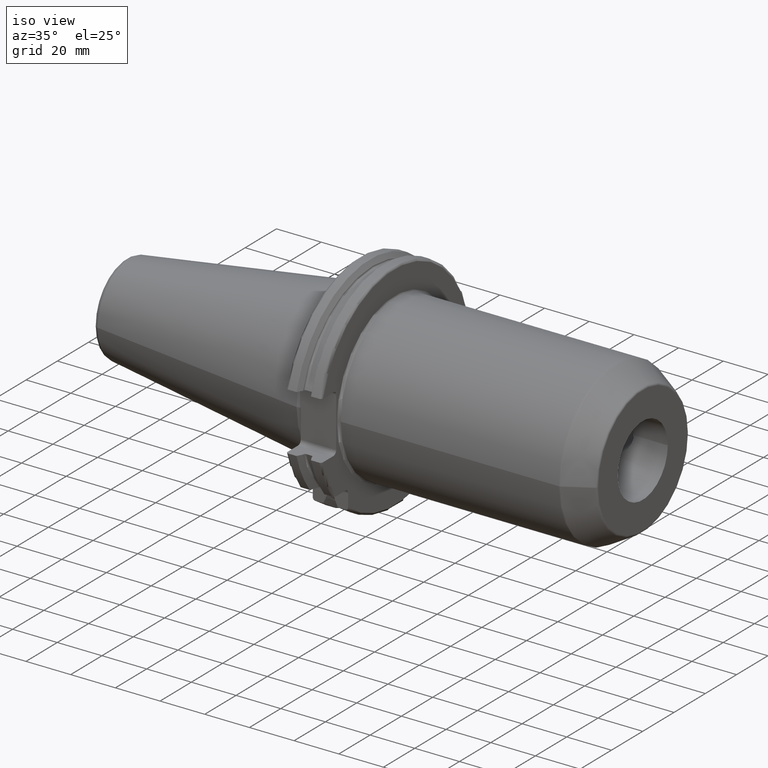
[diagram: clean part render]
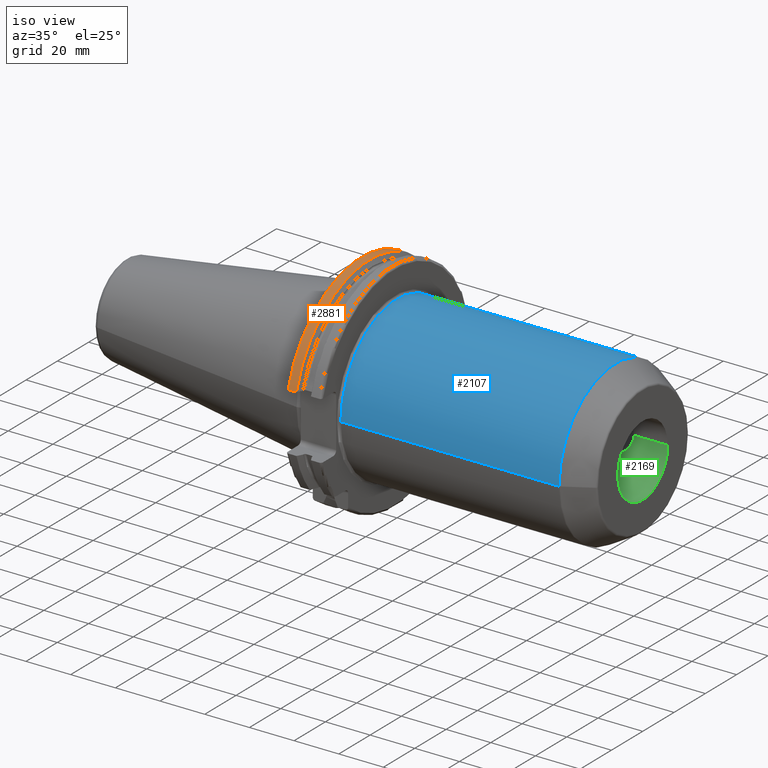
[diagram: same view with three faces highlighted in distinct colors, each labeled with its STEP entity id]
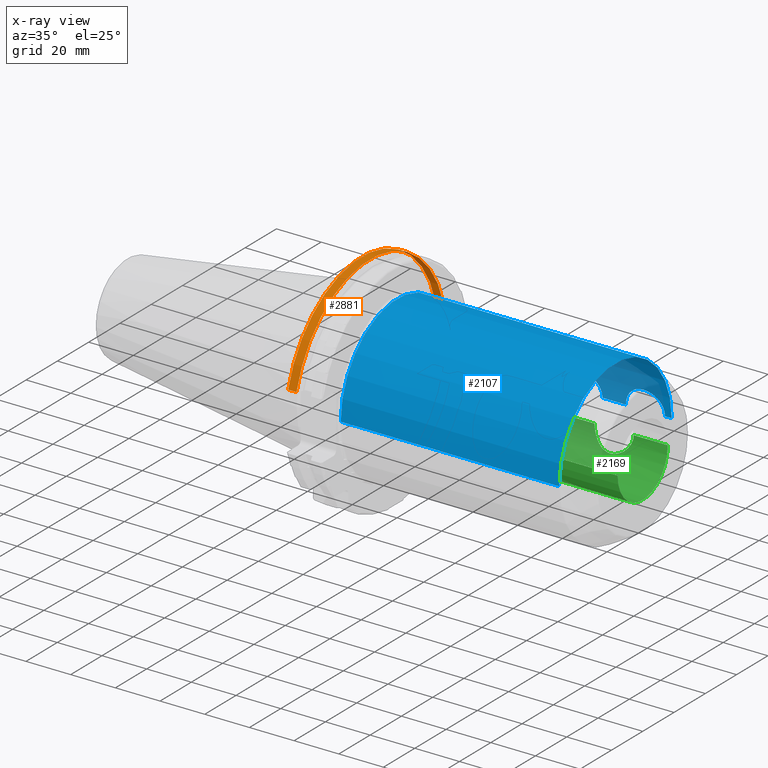
[diagram: x-ray of the same camera — body ghosted, the three highlighted faces saturated]
A machine part, iso view with three faces highlighted in distinct colors.
The next image is the same camera in x-ray (body ghosted, the three faces saturated) — at least one of them is partly hidden behind the body in this view.
Their STEP definitions:

[orange] entity #2881 — the highlighted cylindrical surface (partial cylindrical patch) has radius 48.7375 mm, axis along (1, 0, 0).
#989=DIRECTION('',(1.E0,0.E0,0.E0));
#990=VECTOR('',#989,3.734621614173E0);
#991=CARTESIAN_POINT('',(4.2E0,4.699929686974E1,1.29E1));
#992=LINE('',#991,#990);
#993=CARTESIAN_POINT('',(7.934621614173E0,0.E0,0.E0));
#994=DIRECTION('',(1.E0,0.E0,0.E0));
#995=DIRECTION('',(0.E0,9.643354064066E-1,2.646832521159E-1));
#996=AXIS2_PLACEMENT_3D('',#993,#994,#995);
#998=DIRECTION('',(1.E0,0.E0,0.E0));
#999=VECTOR('',#998,3.734621614173E0);
#1000=CARTESIAN_POINT('',(4.2E0,-4.699929686974E1,1.29E1));
#1001=LINE('',#1000,#999);
#1020=CARTESIAN_POINT('',(7.934621614173E0,4.699929686974E1,1.29E1));
#1032=CARTESIAN_POINT('',(7.934621614173E0,-4.699929686974E1,1.29E1));
#1045=CARTESIAN_POINT('',(4.2E0,0.E0,0.E0));
#1046=DIRECTION('',(1.E0,0.E0,0.E0));
#1047=DIRECTION('',(0.E0,9.643354064066E-1,2.646832521159E-1));
#1048=AXIS2_PLACEMENT_3D('',#1045,#1046,#1047);
#1690=VERTEX_POINT('',#1020);
#1691=VERTEX_POINT('',#1032);
#1702=CARTESIAN_POINT('',(4.2E0,4.699929686974E1,1.29E1));
#1703=VERTEX_POINT('',#1702);
#1706=CARTESIAN_POINT('',(4.2E0,-4.699929686974E1,1.29E1));
#1707=VERTEX_POINT('',#1706);
#2868=CARTESIAN_POINT('',(-1.076325E2,0.E0,0.E0));
#2869=DIRECTION('',(1.E0,0.E0,0.E0));
#2870=DIRECTION('',(0.E0,-1.E0,0.E0));
#2871=AXIS2_PLACEMENT_3D('',#2868,#2869,#2870);
#2872=CYLINDRICAL_SURFACE('',#2871,4.87375E1);
#2873=ORIENTED_EDGE('',*,*,#2835,.T.);
#2875=ORIENTED_EDGE('',*,*,#2874,.T.);
#2876=ORIENTED_EDGE('',*,*,#2463,.F.);
#2878=ORIENTED_EDGE('',*,*,#2877,.F.);
#2879=EDGE_LOOP('',(#2873,#2875,#2876,#2878));
#2880=FACE_OUTER_BOUND('',#2879,.F.);
#2881=ADVANCED_FACE('',(#2880),#2872,.T.);
#997=CIRCLE('',#996,4.87375E1);
#1049=CIRCLE('',#1048,4.87375E1);
#2463=EDGE_CURVE('',#1707,#1691,#1001,.T.);
#2835=EDGE_CURVE('',#1703,#1690,#992,.T.);
#2874=EDGE_CURVE('',#1690,#1691,#997,.T.);
#2877=EDGE_CURVE('',#1703,#1707,#1049,.T.);

[blue] entity #2107 — the highlighted cylindrical surface (partial cylindrical patch) has radius 36 mm, axis along (1, 0, 0).
#199=DIRECTION('',(-1.E0,0.E0,-1.085437181624E-13));
#200=VECTOR('',#199,9.768205080757E1);
#201=CARTESIAN_POINT('',(1.177320508076E2,-3.6E1,3.166704809412E-12));
#202=LINE('',#201,#200);
#208=DIRECTION('',(-1.E0,0.E0,1.063032301368E-12));
#209=VECTOR('',#208,2.982050807569E0);
#210=CARTESIAN_POINT('',(1.177320508076E2,3.6E1,-3.167808499080E-12));
#211=LINE('',#210,#209);
#237=DIRECTION('',(-1.E0,0.E0,0.E0));
#238=VECTOR('',#237,1.05E1);
#239=CARTESIAN_POINT('',(9.725E1,3.6E1,0.E0));
#240=LINE('',#239,#238);
#266=DIRECTION('',(-1.E0,0.E0,0.E0));
#267=VECTOR('',#266,3.73E1);
#268=CARTESIAN_POINT('',(6.925E1,3.6E1,0.E0));
#269=LINE('',#268,#267);
#275=DIRECTION('',(1.E0,0.E0,0.E0));
#276=VECTOR('',#275,1.19E1);
#277=CARTESIAN_POINT('',(2.005E1,3.53E1,7.064700984472E0));
#278=LINE('',#277,#276);
#279=CARTESIAN_POINT('',(3.195E1,0.E0,0.E0));
#280=DIRECTION('',(1.E0,0.E0,0.E0));
#281=DIRECTION('',(0.E0,1.E0,0.E0));
#282=AXIS2_PLACEMENT_3D('',#279,#280,#281);
#284=CARTESIAN_POINT('',(8.675E1,3.6E1,0.E0));
#285=CARTESIAN_POINT('',(8.675E1,3.6E1,4.328762405390E-1));
#286=CARTESIAN_POINT('',(8.668668040112E1,3.598452680037E1,1.290902916038E0));
#287=CARTESIAN_POINT('',(8.639844414085E1,3.591555898103E1,2.569113107540E0));
#288=CARTESIAN_POINT('',(8.592341840487E1,3.580666403429E1,3.789105766172E0));
#289=CARTESIAN_POINT('',(8.526538734877E1,3.566579983971E1,4.935370911112E0));
#290=CARTESIAN_POINT('',(8.444270121439E1,3.550609889240E1,5.970047260119E0));
#291=CARTESIAN_POINT('',(8.346571557522E1,3.534066362951E1,6.875518726139E0));
#292=CARTESIAN_POINT('',(8.237517909092E1,3.518732628851E1,7.615820868636E0));
#293=CARTESIAN_POINT('',(8.118257675617E1,3.505813245286E1,8.185689496257E0));
#294=CARTESIAN_POINT('',(7.993841407744E1,3.496650309323E1,8.565646898380E0));
#295=CARTESIAN_POINT('',(7.864598245611E1,3.491840976312E1,8.758190115069E0));
#296=CARTESIAN_POINT('',(7.735464354204E1,3.491839629078E1,8.758244256587E0));
#297=CARTESIAN_POINT('',(7.606209834415E1,3.496647615459E1,8.565754065491E0));
#298=CARTESIAN_POINT('',(7.481812166919E1,3.505806747354E1,8.185969747810E0));
#299=CARTESIAN_POINT('',(7.362520025622E1,3.518727957249E1,7.616027115692E0));
#300=CARTESIAN_POINT('',(7.253498314087E1,3.534055455140E1,6.876087451742E0));
#301=CARTESIAN_POINT('',(7.155749004122E1,3.550606328243E1,5.970242728445E0));
#302=CARTESIAN_POINT('',(7.073520868062E1,3.566567909736E1,4.936242167320E0));
#303=CARTESIAN_POINT('',(7.007668989580E1,3.580663796255E1,3.789375502926E0));
#304=CARTESIAN_POINT('',(6.960172760851E1,3.591551923999E1,2.569672583821E0));
#305=CARTESIAN_POINT('',(6.931329697060E1,3.598453179394E1,1.290921085979E0));
#306=CARTESIAN_POINT('',(6.925E1,3.6E1,4.328749656371E-1));
#307=CARTESIAN_POINT('',(6.925E1,3.6E1,0.E0));
#309=CARTESIAN_POINT('',(1.1475E2,3.6E1,0.E0));
#310=CARTESIAN_POINT('',(1.1475E2,3.6E1,4.328762405390E-1));
#311=CARTESIAN_POINT('',(1.146866804011E2,3.598452680037E1,1.290902916038E0));
#312=CARTESIAN_POINT('',(1.143984441408E2,3.591555898103E1,2.569113107540E0));
#313=CARTESIAN_POINT('',(1.139234184049E2,3.580666403429E1,3.789105766172E0));
#314=CARTESIAN_POINT('',(1.132653873488E2,3.566579983971E1,4.935370911112E0));
#315=CARTESIAN_POINT('',(1.124427012144E2,3.550609889240E1,5.970047260119E0));
#316=CARTESIAN_POINT('',(1.114657155752E2,3.534066362951E1,6.875518726139E0));
#317=CARTESIAN_POINT('',(1.103751790909E2,3.518732628851E1,7.615820868636E0));
#318=CARTESIAN_POINT('',(1.091825767562E2,3.505813245286E1,8.185689496257E0));
#319=CARTESIAN_POINT('',(1.079384140774E2,3.496650309323E1,8.565646898380E0));
#320=CARTESIAN_POINT('',(1.066459824561E2,3.491840976312E1,8.758190115069E0));
#321=CARTESIAN_POINT('',(1.053546435420E2,3.491839629078E1,8.758244256587E0));
#322=CARTESIAN_POINT('',(1.040620983442E2,3.496647615459E1,8.565754065491E0));
#323=CARTESIAN_POINT('',(1.028181216692E2,3.505806747354E1,8.185969747809E0));
#324=CARTESIAN_POINT('',(1.016252002562E2,3.518727957249E1,7.616027115692E0));
#325=CARTESIAN_POINT('',(1.005349831409E2,3.534055455140E1,6.876087451742E0));
#326=CARTESIAN_POINT('',(9.955749004122E1,3.550606328243E1,5.970242728445E0));
#327=CARTESIAN_POINT('',(9.873520868062E1,3.566567909736E1,4.936242167320E0));
#328=CARTESIAN_POINT('',(9.807668989580E1,3.580663796255E1,3.789375502926E0));
#329=CARTESIAN_POINT('',(9.760172760851E1,3.591551923999E1,2.569672583821E0));
#330=CARTESIAN_POINT('',(9.731329697060E1,3.598453179394E1,1.290921085979E0));
#331=CARTESIAN_POINT('',(9.725E1,3.6E1,4.328749656371E-1));
#332=CARTESIAN_POINT('',(9.725E1,3.6E1,0.E0));
#334=CARTESIAN_POINT('',(1.177320508076E2,0.E0,0.E0));
#335=DIRECTION('',(-1.E0,0.E0,0.E0));
#336=DIRECTION('',(0.E0,-1.E0,0.E0));
#337=AXIS2_PLACEMENT_3D('',#334,#335,#336);
#339=CARTESIAN_POINT('',(2.005E1,0.E0,0.E0));
#340=DIRECTION('',(1.E0,0.E0,0.E0));
#341=DIRECTION('',(0.E0,9.805555555556E-1,1.962416940131E-1));
#342=AXIS2_PLACEMENT_3D('',#339,#340,#341);
#1800=CARTESIAN_POINT('',(1.1475E2,3.6E1,0.E0));
#1802=VERTEX_POINT('',#1800);
#1804=CARTESIAN_POINT('',(9.725E1,3.6E1,0.E0));
#1806=VERTEX_POINT('',#1804);
#1809=CARTESIAN_POINT('',(1.177320508076E2,3.6E1,0.E0));
#1810=CARTESIAN_POINT('',(1.177320508076E2,-3.6E1,0.E0));
#1811=VERTEX_POINT('',#1809);
#1812=VERTEX_POINT('',#1810);
#1825=CARTESIAN_POINT('',(2.005E1,-3.6E1,-7.436068182970E-12));
#1826=VERTEX_POINT('',#1825);
#1827=VERTEX_POINT('',#284);
#1828=VERTEX_POINT('',#307);
#1854=CARTESIAN_POINT('',(2.005E1,3.53E1,7.064700984472E0));
#1855=CARTESIAN_POINT('',(3.195E1,3.53E1,7.064700984472E0));
#1856=VERTEX_POINT('',#1854);
#1857=VERTEX_POINT('',#1855);
#1858=CARTESIAN_POINT('',(3.195E1,3.6E1,1.421085471520E-14));
#1859=VERTEX_POINT('',#1858);
#2086=CARTESIAN_POINT('',(1.35025E1,0.E0,0.E0));
#2087=DIRECTION('',(1.E0,0.E0,0.E0));
#2088=DIRECTION('',(0.E0,-1.E0,0.E0));
#2089=AXIS2_PLACEMENT_3D('',#2086,#2087,#2088);
#2090=CYLINDRICAL_SURFACE('',#2089,3.6E1);
#2091=ORIENTED_EDGE('',*,*,#2022,.T.);
#2093=ORIENTED_EDGE('',*,*,#2092,.F.);
#2094=ORIENTED_EDGE('',*,*,#2079,.F.);
#2096=ORIENTED_EDGE('',*,*,#2095,.F.);
#2097=ORIENTED_EDGE('',*,*,#2075,.F.);
#2099=ORIENTED_EDGE('',*,*,#2098,.F.);
#2100=ORIENTED_EDGE('',*,*,#2071,.F.);
#2102=ORIENTED_EDGE('',*,*,#2101,.F.);
#2103=ORIENTED_EDGE('',*,*,#2067,.T.);
#2104=ORIENTED_EDGE('',*,*,#2055,.F.);
#2105=EDGE_LOOP('',(#2091,#2093,#2094,#2096,#2097,#2099,#2100,#2102,#2103,
#2104));
#2106=FACE_OUTER_BOUND('',#2105,.F.);
#2107=ADVANCED_FACE('',(#2106),#2090,.T.);
#283=CIRCLE('',#282,3.6E1);
#308=B_SPLINE_CURVE_WITH_KNOTS('',3,(#284,#285,#286,#287,#288,#289,#290,#291,
#292,#293,#294,#295,#296,#297,#298,#299,#300,#301,#302,#303,#304,#305,#306,
#307),.UNSPECIFIED.,.F.,.F.,(4,1,1,1,1,1,1,1,1,1,1,1,1,1,1,1,1,1,1,1,1,4),(0.E0,
4.761904761905E-2,9.523809523810E-2,1.428571428571E-1,1.904761904762E-1,
2.380952380952E-1,2.857142857143E-1,3.333333333333E-1,3.809523809524E-1,
4.285714285714E-1,4.761904761905E-1,5.238095238095E-1,5.714285714286E-1,
6.190476190476E-1,6.666666666667E-1,7.142857142857E-1,7.619047619048E-1,
8.095238095238E-1,8.571428571429E-1,9.047619047619E-1,9.523809523810E-1,1.E0),
.UNSPECIFIED.);
#333=B_SPLINE_CURVE_WITH_KNOTS('',3,(#309,#310,#311,#312,#313,#314,#315,#316,
#317,#318,#319,#320,#321,#322,#323,#324,#325,#326,#327,#328,#329,#330,#331,
#332),.UNSPECIFIED.,.F.,.F.,(4,1,1,1,1,1,1,1,1,1,1,1,1,1,1,1,1,1,1,1,1,4),(0.E0,
4.761904761905E-2,9.523809523810E-2,1.428571428571E-1,1.904761904762E-1,
2.380952380952E-1,2.857142857143E-1,3.333333333333E-1,3.809523809524E-1,
4.285714285714E-1,4.761904761905E-1,5.238095238095E-1,5.714285714286E-1,
6.190476190476E-1,6.666666666667E-1,7.142857142857E-1,7.619047619048E-1,
8.095238095238E-1,8.571428571429E-1,9.047619047619E-1,9.523809523810E-1,1.E0),
.UNSPECIFIED.);
#338=CIRCLE('',#337,3.6E1);
#343=CIRCLE('',#342,3.6E1);
#2022=EDGE_CURVE('',#1856,#1857,#278,.T.);
#2055=EDGE_CURVE('',#1856,#1826,#343,.T.);
#2067=EDGE_CURVE('',#1812,#1826,#202,.T.);
#2071=EDGE_CURVE('',#1811,#1802,#211,.T.);
#2075=EDGE_CURVE('',#1806,#1827,#240,.T.);
#2079=EDGE_CURVE('',#1828,#1859,#269,.T.);
#2092=EDGE_CURVE('',#1859,#1857,#283,.T.);
#2095=EDGE_CURVE('',#1827,#1828,#308,.T.);
#2098=EDGE_CURVE('',#1802,#1806,#333,.T.);
#2101=EDGE_CURVE('',#1812,#1811,#338,.T.);

[green] entity #2169 — the highlighted cylindrical surface (partial cylindrical patch) has radius 16 mm, axis along (1, 0, 0).
#352=CARTESIAN_POINT('',(8.675E1,1.6E1,0.E0));
#353=CARTESIAN_POINT('',(8.675E1,1.6E1,-3.937363825976E-1));
#354=CARTESIAN_POINT('',(8.669775440100E1,1.597132047919E1,-1.186658474498E0));
#355=CARTESIAN_POINT('',(8.644373091325E1,1.583376192086E1,-2.405864529079E0));
#356=CARTESIAN_POINT('',(8.601480027068E1,1.560799043282E1,-3.586568180866E0));
#357=CARTESIAN_POINT('',(8.540579798404E1,1.530241413150E1,-4.718856942047E0));
#358=CARTESIAN_POINT('',(8.463672645007E1,1.494291489727E1,-5.751463389566E0));
#359=CARTESIAN_POINT('',(8.370387754446E1,1.454955286686E1,-6.678858461535E0));
#360=CARTESIAN_POINT('',(8.264703842656E1,1.416586395815E1,-7.451637817074E0));
#361=CARTESIAN_POINT('',(8.151439902187E1,1.383372883056E1,-8.046067176928E0));
#362=CARTESIAN_POINT('',(8.034647911118E1,1.358290976180E1,-8.458798122793E0));
#363=CARTESIAN_POINT('',(7.916870027715E1,1.342928393226E1,-8.698506998055E0));
#364=CARTESIAN_POINT('',(7.799760075245E1,1.337841935638E1,-8.775870869415E0));
#365=CARTESIAN_POINT('',(7.682791170553E1,1.342960963888E1,-8.698007918469E0));
#366=CARTESIAN_POINT('',(7.564985296090E1,1.358352548623E1,-8.457819313595E0));
#367=CARTESIAN_POINT('',(7.448156078770E1,1.383475372427E1,-8.044329087623E0));
#368=CARTESIAN_POINT('',(7.334906812143E1,1.416716236379E1,-7.449178799143E0));
#369=CARTESIAN_POINT('',(7.229349275729E1,1.455060962943E1,-6.676535446851E0));
#370=CARTESIAN_POINT('',(7.136151160983E1,1.494370782237E1,-5.749392458163E0));
#371=CARTESIAN_POINT('',(7.059312836856E1,1.530294332678E1,-4.717067098087E0));
#372=CARTESIAN_POINT('',(6.998491119259E1,1.560814240658E1,-3.585838853054E0));
#373=CARTESIAN_POINT('',(6.955610632799E1,1.583384886335E1,-2.405236791548E0));
#374=CARTESIAN_POINT('',(6.930227912537E1,1.597130268827E1,-1.186720978647E0));
#375=CARTESIAN_POINT('',(6.925E1,1.6E1,-3.937887720285E-1));
#376=CARTESIAN_POINT('',(6.925E1,1.6E1,0.E0));
#378=DIRECTION('',(-1.E0,0.E0,0.E0));
#379=VECTOR('',#378,1.05E1);
#380=CARTESIAN_POINT('',(9.725E1,1.6E1,0.E0));
#381=LINE('',#380,#379);
#382=CARTESIAN_POINT('',(1.1475E2,1.6E1,0.E0));
#383=CARTESIAN_POINT('',(1.1475E2,1.6E1,-3.937363825975E-1));
#384=CARTESIAN_POINT('',(1.146977544010E2,1.597132047919E1,-1.186658474498E0));
#385=CARTESIAN_POINT('',(1.144437309133E2,1.583376192086E1,-2.405864529079E0));
#386=CARTESIAN_POINT('',(1.140148002707E2,1.560799043282E1,-3.586568180866E0));
#387=CARTESIAN_POINT('',(1.134057979840E2,1.530241413150E1,-4.718856942047E0));
#388=CARTESIAN_POINT('',(1.126367264501E2,1.494291489727E1,-5.751463389566E0));
#389=CARTESIAN_POINT('',(1.117038775445E2,1.454955286686E1,-6.678858461535E0));
#390=CARTESIAN_POINT('',(1.106470384266E2,1.416586395815E1,-7.451637817074E0));
#391=CARTESIAN_POINT('',(1.095143990219E2,1.383372883056E1,-8.046067176928E0));
#392=CARTESIAN_POINT('',(1.083464791112E2,1.358290976180E1,-8.458798122793E0));
#393=CARTESIAN_POINT('',(1.071687002772E2,1.342928393226E1,-8.698506998055E0));
#394=CARTESIAN_POINT('',(1.059976007524E2,1.337841935638E1,-8.775870869415E0));
#395=CARTESIAN_POINT('',(1.048279117055E2,1.342960963888E1,-8.698007918469E0));
#396=CARTESIAN_POINT('',(1.036498529609E2,1.358352548623E1,-8.457819313595E0));
#397=CARTESIAN_POINT('',(1.024815607877E2,1.383475372427E1,-8.044329087623E0));
#398=CARTESIAN_POINT('',(1.013490681214E2,1.416716236379E1,-7.449178799143E0));
#399=CARTESIAN_POINT('',(1.002934927573E2,1.455060962943E1,-6.676535446851E0));
#400=CARTESIAN_POINT('',(9.936151160983E1,1.494370782237E1,-5.749392458163E0));
#401=CARTESIAN_POINT('',(9.859312836856E1,1.530294332678E1,-4.717067098087E0));
#402=CARTESIAN_POINT('',(9.798491119259E1,1.560814240658E1,-3.585838853054E0));
#403=CARTESIAN_POINT('',(9.755610632799E1,1.583384886335E1,-2.405236791548E0));
#404=CARTESIAN_POINT('',(9.730227912537E1,1.597130268827E1,-1.186720978647E0));
#405=CARTESIAN_POINT('',(9.725E1,1.6E1,-3.937887720285E-1));
#406=CARTESIAN_POINT('',(9.725E1,1.6E1,0.E0));
#408=DIRECTION('',(-1.E0,0.E0,0.E0));
#409=VECTOR('',#408,1.525E1);
#410=CARTESIAN_POINT('',(1.3E2,1.6E1,0.E0));
#411=LINE('',#410,#409);
#412=DIRECTION('',(-1.E0,0.E0,0.E0));
#413=VECTOR('',#412,6.51E1);
#414=CARTESIAN_POINT('',(1.3E2,-1.6E1,0.E0));
#415=LINE('',#414,#413);
#416=DIRECTION('',(-1.E0,0.E0,0.E0));
#417=VECTOR('',#416,4.35E0);
#418=CARTESIAN_POINT('',(6.925E1,1.6E1,0.E0));
#419=LINE('',#418,#417);
#420=CARTESIAN_POINT('',(6.925E1,1.6E1,0.E0));
#444=CARTESIAN_POINT('',(8.675E1,1.6E1,0.E0));
#472=CARTESIAN_POINT('',(6.49E1,0.E0,0.E0));
#473=DIRECTION('',(-1.E0,0.E0,0.E0));
#474=DIRECTION('',(0.E0,1.E0,0.E0));
#475=AXIS2_PLACEMENT_3D('',#472,#473,#474);
#487=CARTESIAN_POINT('',(1.3E2,0.E0,0.E0));
#488=DIRECTION('',(1.E0,0.E0,0.E0));
#489=DIRECTION('',(0.E0,-1.E0,0.E0));
#490=AXIS2_PLACEMENT_3D('',#487,#488,#489);
#1793=CARTESIAN_POINT('',(6.49E1,1.6E1,0.E0));
#1794=CARTESIAN_POINT('',(6.49E1,-1.6E1,0.E0));
#1795=VERTEX_POINT('',#1793);
#1796=VERTEX_POINT('',#1794);
#1797=CARTESIAN_POINT('',(1.3E2,-1.6E1,0.E0));
#1798=VERTEX_POINT('',#1797);
#1799=CARTESIAN_POINT('',(1.1475E2,1.6E1,0.E0));
#1801=VERTEX_POINT('',#1799);
#1803=CARTESIAN_POINT('',(9.725E1,1.6E1,0.E0));
#1805=VERTEX_POINT('',#1803);
#1807=CARTESIAN_POINT('',(1.3E2,1.6E1,0.E0));
#1808=VERTEX_POINT('',#1807);
#1829=VERTEX_POINT('',#420);
#1830=VERTEX_POINT('',#444);
#2147=CARTESIAN_POINT('',(6.1645E1,0.E0,0.E0));
#2148=DIRECTION('',(1.E0,0.E0,0.E0));
#2149=DIRECTION('',(0.E0,-1.E0,0.E0));
#2150=AXIS2_PLACEMENT_3D('',#2147,#2148,#2149);
#2151=CYLINDRICAL_SURFACE('',#2150,1.6E1);
#2152=ORIENTED_EDGE('',*,*,#2141,.F.);
#2154=ORIENTED_EDGE('',*,*,#2153,.F.);
#2156=ORIENTED_EDGE('',*,*,#2155,.F.);
#2158=ORIENTED_EDGE('',*,*,#2157,.F.);
#2160=ORIENTED_EDGE('',*,*,#2159,.F.);
#2162=ORIENTED_EDGE('',*,*,#2161,.T.);
#2164=ORIENTED_EDGE('',*,*,#2163,.F.);
#2166=ORIENTED_EDGE('',*,*,#2165,.F.);
#2167=EDGE_LOOP('',(#2152,#2154,#2156,#2158,#2160,#2162,#2164,#2166));
#2168=FACE_OUTER_BOUND('',#2167,.F.);
#2169=ADVANCED_FACE('',(#2168),#2151,.F.);
#377=B_SPLINE_CURVE_WITH_KNOTS('',3,(#352,#353,#354,#355,#356,#357,#358,#359,
#360,#361,#362,#363,#364,#365,#366,#367,#368,#369,#370,#371,#372,#373,#374,#375,
#376),.UNSPECIFIED.,.F.,.F.,(4,1,1,1,1,1,1,1,1,1,1,1,1,1,1,1,1,1,1,1,1,1,4),(
0.E0,4.545454545455E-2,9.090909090909E-2,1.363636363636E-1,1.818181818182E-1,
2.272727272727E-1,2.727272727273E-1,3.181818181818E-1,3.636363636364E-1,
4.090909090909E-1,4.545454545455E-1,5.E-1,5.454545454545E-1,5.909090909091E-1,
6.363636363636E-1,6.818181818182E-1,7.272727272727E-1,7.727272727273E-1,
8.181818181818E-1,8.636363636364E-1,9.090909090909E-1,9.545454545455E-1,1.E0),
.UNSPECIFIED.);
#407=B_SPLINE_CURVE_WITH_KNOTS('',3,(#382,#383,#384,#385,#386,#387,#388,#389,
#390,#391,#392,#393,#394,#395,#396,#397,#398,#399,#400,#401,#402,#403,#404,#405,
#406),.UNSPECIFIED.,.F.,.F.,(4,1,1,1,1,1,1,1,1,1,1,1,1,1,1,1,1,1,1,1,1,1,4),(
0.E0,4.545454545455E-2,9.090909090909E-2,1.363636363636E-1,1.818181818182E-1,
2.272727272727E-1,2.727272727273E-1,3.181818181818E-1,3.636363636364E-1,
4.090909090909E-1,4.545454545455E-1,5.E-1,5.454545454545E-1,5.909090909091E-1,
6.363636363636E-1,6.818181818182E-1,7.272727272727E-1,7.727272727273E-1,
8.181818181818E-1,8.636363636364E-1,9.090909090909E-1,9.545454545455E-1,1.E0),
.UNSPECIFIED.);
#476=CIRCLE('',#475,1.6E1);
#491=CIRCLE('',#490,1.6E1);
#2141=EDGE_CURVE('',#1830,#1829,#377,.T.);
#2153=EDGE_CURVE('',#1805,#1830,#381,.T.);
#2155=EDGE_CURVE('',#1801,#1805,#407,.T.);
#2157=EDGE_CURVE('',#1808,#1801,#411,.T.);
#2159=EDGE_CURVE('',#1798,#1808,#491,.T.);
#2161=EDGE_CURVE('',#1798,#1796,#415,.T.);
#2163=EDGE_CURVE('',#1795,#1796,#476,.T.);
#2165=EDGE_CURVE('',#1829,#1795,#419,.T.);